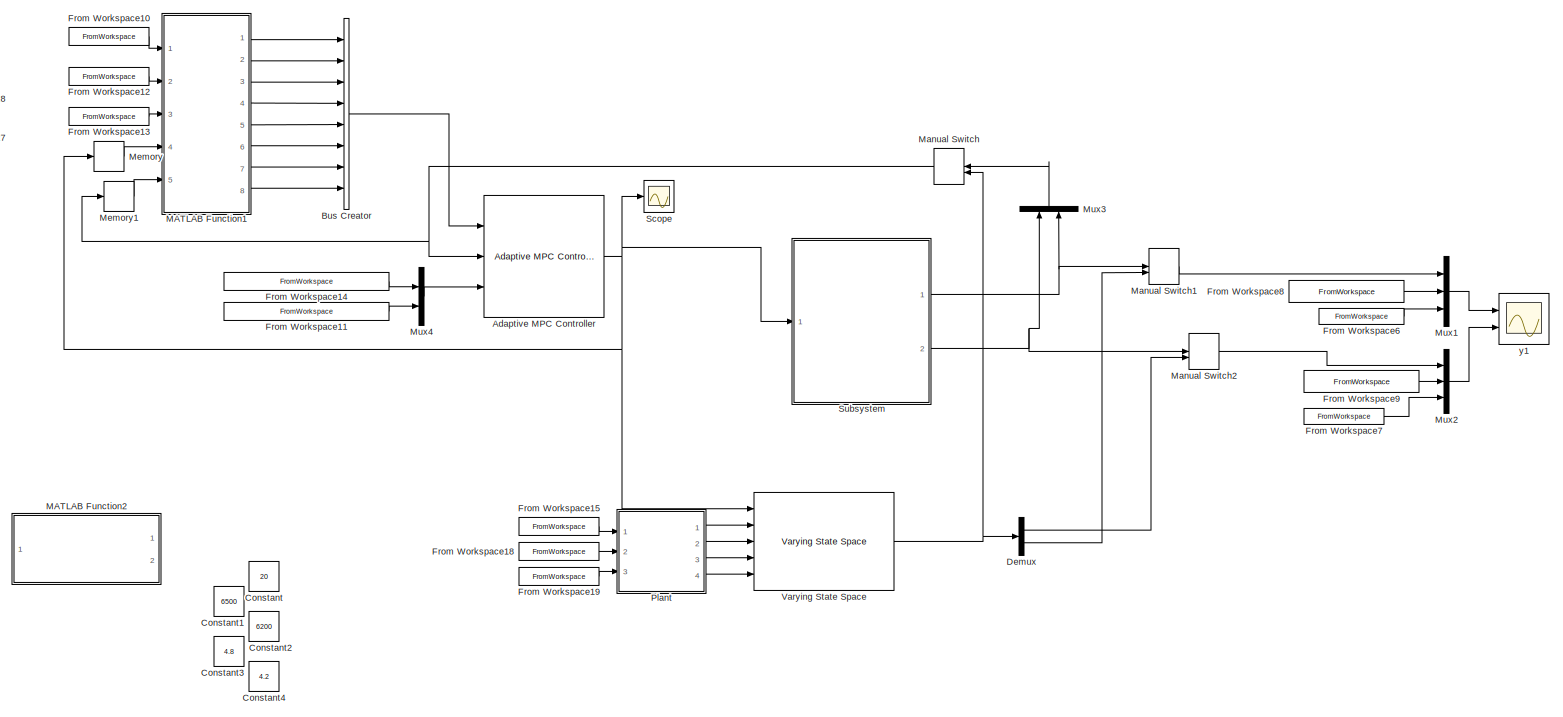
[diagram: root canvas - part 1/3, full width, middle band]
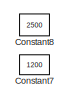
[diagram: root canvas - part 2/3, top left region]
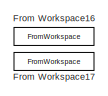
[diagram: root canvas - part 3/3, bottom center region]
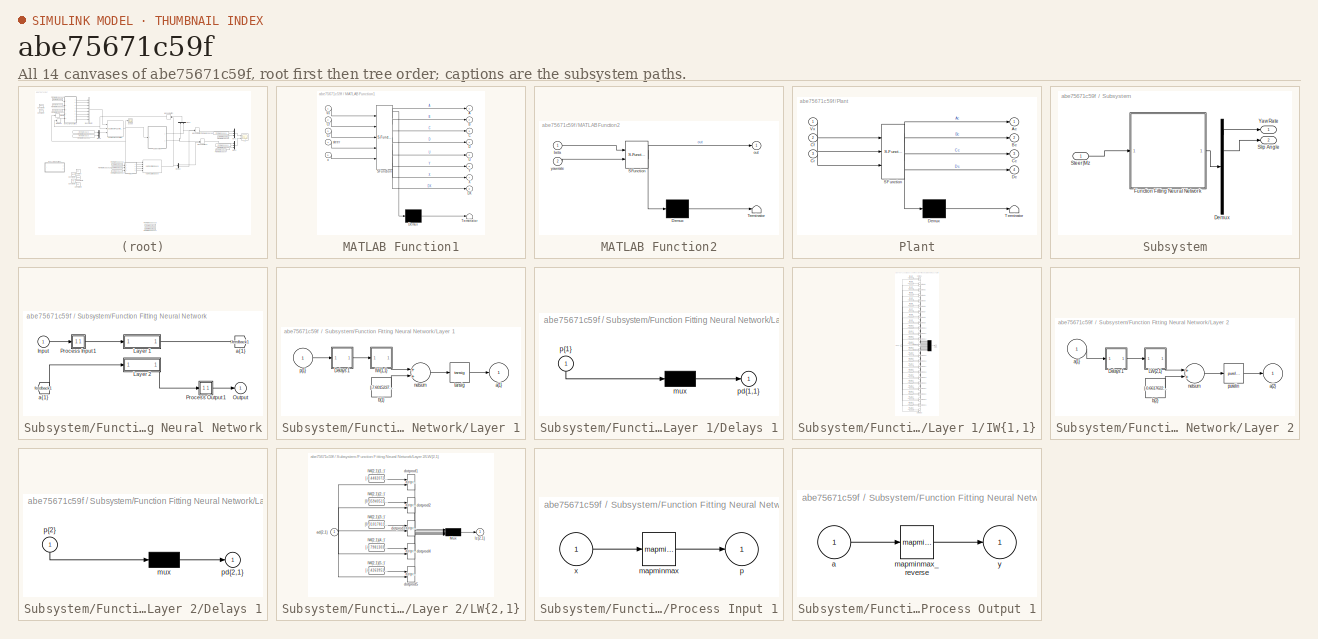
[diagram: thumbnail index - all 14 canvases of the model, root first then tree order]
MODEL slx_abe75671c59f
KIND model
CONFIG AbsTol = auto
CONFIG EnableMultiTasking = off
CONFIG FixedStep = 0.025
CONFIG MaxStep = auto
CONFIG MinStep = auto
CONFIG RelTol = 1e-3
CONFIG SampleTimeConstraint = Unconstrained
CONFIG Solver = FixedStepAuto
CONFIG SolverName = FixedStepAuto
CONFIG StartTime = 0.0
CONFIG StopTime = 10.0
BLOCK [Reference] Adaptive MPC Controller  REF=mpclib/Adaptive MPC Controller  (lib defined in mdl_ae329e0e0455)
  Ports = [3, 1]
  SCDEnableBlockLinearizationSpecification = on
  SourceBlock = mpclib/Adaptive MPC Controller
  SourceProductBaseCode = MP
  SourceProductName = Model Predictive Control Toolbox
  SourceType = Adaptive MPC
BLOCK [BusCreator] Bus Creator
  DisplayOption = bar
  InheritFromInputs = on
  Inputs = 8
  Ports = [8, 1]
BLOCK [Constant] Constant
  Commented = on
  Value = 20
BLOCK [Constant] Constant1
  Commented = on
  Value = 6500
BLOCK [Constant] Constant2
  Commented = on
  Value = 6200
BLOCK [Constant] Constant3
  Commented = on
  Value = 4.8
BLOCK [Constant] Constant4
  Commented = on
  Value = 4.2
BLOCK [Constant] Constant7
  Commented = on
  Value = 1200
BLOCK [Constant] Constant8
  Commented = on
  Value = 2500
BLOCK [Demux] Demux
  DisplayOption = bar
  Outputs = 2
  Ports = [1, 2]
BLOCK [FromWorkspace] From Workspace10
  SampleTime = 0
  VariableName = [Time Vx]
  ZeroCross = on
BLOCK [FromWorkspace] From Workspace11
  SampleTime = 0
  VariableName = [Time YawRateRef_Filtered]
  ZeroCross = on
BLOCK [FromWorkspace] From Workspace12
  SampleTime = 0
  VariableName = [Time Cf_fit]
  ZeroCross = on
BLOCK [FromWorkspace] From Workspace13
  SampleTime = 0
  VariableName = [Time Cr_fit]
  ZeroCross = on
BLOCK [FromWorkspace] From Workspace14
  SampleTime = 0
  VariableName = [Time BetaRef_Filtered]
  ZeroCross = on
BLOCK [FromWorkspace] From Workspace15
  SampleTime = 0
  VariableName = [Time Vx]
  ZeroCross = on
BLOCK [FromWorkspace] From Workspace16
  SampleTime = 0
  VariableName = [Time Cf_fit]
  ZeroCross = on
BLOCK [FromWorkspace] From Workspace17
  SampleTime = 0
  VariableName = [Time Cr_fit]
  ZeroCross = on
BLOCK [FromWorkspace] From Workspace18
  SampleTime = 0
  VariableName = [Time Cf_fit]
  ZeroCross = on
BLOCK [FromWorkspace] From Workspace19
  SampleTime = 0
  VariableName = [Time Cr_fit]
  ZeroCross = on
BLOCK [FromWorkspace] From Workspace6
  SampleTime = 0
  VariableName = [Time YawR]
  ZeroCross = on
BLOCK [FromWorkspace] From Workspace7
  SampleTime = 0
  VariableName = [Time Beta]
  ZeroCross = on
BLOCK [FromWorkspace] From Workspace8
  SampleTime = 0
  VariableName = [Time YawRateRef_Filtered]
  ZeroCross = on
BLOCK [FromWorkspace] From Workspace9
  SampleTime = 0
  VariableName = [Time BetaRef_Filtered]
  ZeroCross = on
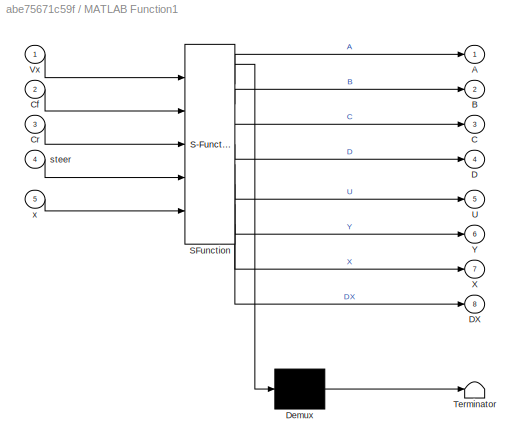
BLOCK [SubSystem] MATLAB Function1
  ErrorFcn = Stateflow.Translate.translate
  PermitHierarchicalResolution = ExplicitOnly
  Ports = [5, 8]
  RequestExecContextInheritance = off
  SFBlockType = MATLAB Function
  TreatAsAtomicUnit = on
BLOCK [Demux] MATLAB Function1/ Demux 
  Outputs = 1
  Ports = [1, 1]
BLOCK [S-Function] MATLAB Function1/ SFunction 
  EnableBusSupport = on
  FunctionName = sf_sfun
  PortCounts = [5 9]
  Ports = [5, 9]
  SFcnIsStateOwnerBlock = off
  SFunctionDeploymentMode = off
  Tag = Stateflow S-Function 2
BLOCK [Terminator] MATLAB Function1/ Terminator 
BLOCK [Outport] MATLAB Function1/A
  IconDisplay = Port number
  VectorParamsAs1DForOutWhenUnconnected = off
BLOCK [Outport] MATLAB Function1/B
  IconDisplay = Port number
  Port = 2
  VectorParamsAs1DForOutWhenUnconnected = off
BLOCK [Outport] MATLAB Function1/C
  IconDisplay = Port number
  Port = 3
  VectorParamsAs1DForOutWhenUnconnected = off
BLOCK [Inport] MATLAB Function1/Cf
  IconDisplay = Port number
  Port = 2
BLOCK [Inport] MATLAB Function1/Cr
  IconDisplay = Port number
  Port = 3
BLOCK [Outport] MATLAB Function1/D
  IconDisplay = Port number
  Port = 4
  VectorParamsAs1DForOutWhenUnconnected = off
BLOCK [Outport] MATLAB Function1/DX
  IconDisplay = Port number
  Port = 8
  VectorParamsAs1DForOutWhenUnconnected = off
BLOCK [Outport] MATLAB Function1/U
  IconDisplay = Port number
  Port = 5
  VectorParamsAs1DForOutWhenUnconnected = off
BLOCK [Inport] MATLAB Function1/Vx
  IconDisplay = Port number
BLOCK [Outport] MATLAB Function1/X
  IconDisplay = Port number
  Port = 7
  VectorParamsAs1DForOutWhenUnconnected = off
BLOCK [Outport] MATLAB Function1/Y
  IconDisplay = Port number
  Port = 6
  VectorParamsAs1DForOutWhenUnconnected = off
BLOCK [Inport] MATLAB Function1/steer
  IconDisplay = Port number
  Port = 4
BLOCK [Inport] MATLAB Function1/x
  IconDisplay = Port number
  Port = 5
BLOCK [SubSystem] MATLAB Function2
  Commented = on
  ErrorFcn = Stateflow.Translate.translate
  PermitHierarchicalResolution = ExplicitOnly
  Ports = [2, 1]
  RequestExecContextInheritance = off
  SFBlockType = MATLAB Function
  TreatAsAtomicUnit = on
BLOCK [Demux] MATLAB Function2/ Demux 
  Outputs = 1
  Ports = [1, 1]
BLOCK [S-Function] MATLAB Function2/ SFunction 
  EnableBusSupport = on
  FunctionName = sf_sfun
  PortCounts = [2 2]
  Ports = [2, 2]
  SFcnIsStateOwnerBlock = off
  SFunctionDeploymentMode = off
  Tag = Stateflow S-Function 3
BLOCK [Terminator] MATLAB Function2/ Terminator 
BLOCK [Inport] MATLAB Function2/beta
  IconDisplay = Port number
BLOCK [Outport] MATLAB Function2/out
  IconDisplay = Port number
  VectorParamsAs1DForOutWhenUnconnected = off
BLOCK [Inport] MATLAB Function2/yawrate
  IconDisplay = Port number
  Port = 2
BLOCK [ManualSwitch] Manual Switch
  CurrentSetting = 0
BLOCK [ManualSwitch] Manual Switch1
  CurrentSetting = 0
BLOCK [ManualSwitch] Manual Switch2
  CurrentSetting = 0
BLOCK [Memory] Memory
BLOCK [Memory] Memory1
BLOCK [Mux] Mux1
  DisplayOption = bar
  Inputs = 3
  Ports = [3, 1]
BLOCK [Mux] Mux2
  DisplayOption = bar
  Inputs = 3
  Ports = [3, 1]
BLOCK [Mux] Mux3
  DisplayOption = bar
  Inputs = 2
  Ports = [2, 1]
BLOCK [Mux] Mux4
  DisplayOption = bar
  Inputs = 2
  Ports = [2, 1]
BLOCK [SubSystem] Plant
  ErrorFcn = Stateflow.Translate.translate
  PermitHierarchicalResolution = ExplicitOnly
  Ports = [3, 4]
  RequestExecContextInheritance = off
  SFBlockType = MATLAB Function
  TreatAsAtomicUnit = on
BLOCK [Demux] Plant/ Demux 
  Outputs = 1
  Ports = [1, 1]
BLOCK [S-Function] Plant/ SFunction 
  EnableBusSupport = on
  FunctionName = sf_sfun
  PortCounts = [3 5]
  Ports = [3, 5]
  SFcnIsStateOwnerBlock = off
  SFunctionDeploymentMode = off
  Tag = Stateflow S-Function 1
BLOCK [Terminator] Plant/ Terminator 
BLOCK [Outport] Plant/Ac
  IconDisplay = Port number
  VectorParamsAs1DForOutWhenUnconnected = off
BLOCK [Outport] Plant/Bc
  IconDisplay = Port number
  Port = 2
BLOCK [Outport] Plant/Cc
  IconDisplay = Port number
  Port = 3
BLOCK [Inport] Plant/Cf
  IconDisplay = Port number
  Port = 2
BLOCK [Inport] Plant/Cr
  IconDisplay = Port number
  Port = 3
BLOCK [Outport] Plant/Dc
  IconDisplay = Port number
  Port = 4
BLOCK [Inport] Plant/Vx
  IconDisplay = Port number
BLOCK [Scope] Scope
  Floating = off
  NumInputPorts = 1
  Ports = [1]
  ScopeSpecificationString = Simulink.scopes.TimeScopeBlockCfg('CurrentConfiguration', extmgr.ConfigurationSet(extmgr.Configuration('Core','General UI',true),extmgr.Configuration('Core','Source UI',true),extmgr.Configuration('Sources','WiredSimulink',true,'DataLoggingVariableName','ScopeData1'),extmgr.Configuration('Visuals','Time Domain',true,'SerializedDisplays',{struct('MinYLimReal','-0.48048','MaxYLimReal','0.6308','YLabe...<+1430ch>
BLOCK [SubSystem] Subsystem
  Ports = [1, 2]
  RequestExecContextInheritance = off
BLOCK [Demux] Subsystem/Demux
  DisplayOption = bar
  Outputs = 5
  Ports = [1, 5]
BLOCK [SubSystem] Subsystem/Function Fitting Neural Network
  Ports = [1, 1]
  RequestExecContextInheritance = off
BLOCK [From] Subsystem/Function Fitting Neural Network/ a{1} 
  GotoTag = feedback1
BLOCK [Inport] Subsystem/Function Fitting Neural Network/Input
  IconDisplay = Port number
  PortDimensions = 2
BLOCK [SubSystem] Subsystem/Function Fitting Neural Network/Layer 1
  Ports = [1, 1]
  RequestExecContextInheritance = off
BLOCK [SubSystem] Subsystem/Function Fitting Neural Network/Layer 1/Delays 1
  Ports = [1, 1]
  RequestExecContextInheritance = off
BLOCK [Mux] Subsystem/Function Fitting Neural Network/Layer 1/Delays 1/mux
  Inputs = 1
  Ports = [1, 1]
BLOCK [Outport] Subsystem/Function Fitting Neural Network/Layer 1/Delays 1/pd{1,1}
  IconDisplay = Port number
BLOCK [Inport] Subsystem/Function Fitting Neural Network/Layer 1/Delays 1/p{1}
  IconDisplay = Port number
  PortDimensions = 2
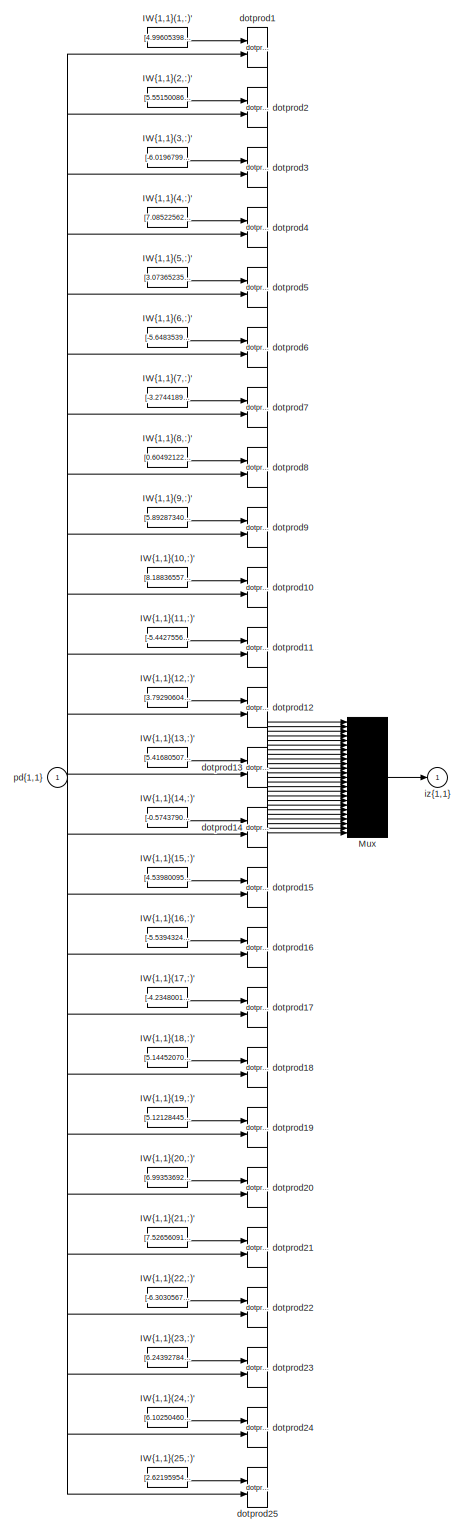
[diagram: Subsystem/Function Fitting Neural Network/Layer 1/IW{1,1} - part 1/1, most of the canvas]
BLOCK [SubSystem] Subsystem/Function Fitting Neural Network/Layer 1/IW{1,1}
  Ports = [1, 1]
  RequestExecContextInheritance = off
BLOCK [Constant] Subsystem/Function Fitting Neural Network/Layer 1/IW{1,1}/IW{1,1}(1,:)'
  Value = [4.996053988368071685499671730212867259979248046875;4.145420661992755384517295169644057750701904296875]
BLOCK [Constant] Subsystem/Function Fitting Neural Network/Layer 1/IW{1,1}/IW{1,1}(10,:)'
  Value = [8.188365570810294258308204007335007190704345703125;-2.409695227788061000495645203045569360256195068359375]
BLOCK [Constant] Subsystem/Function Fitting Neural Network/Layer 1/IW{1,1}/IW{1,1}(11,:)'
  Value = [-5.44275560453445717001841330784372985363006591796875;4.6210999722036749659537235856987535953521728515625]
BLOCK [Constant] Subsystem/Function Fitting Neural Network/Layer 1/IW{1,1}/IW{1,1}(12,:)'
  Value = [3.792906040927508382054611502098850905895233154296875;5.41023104363073148448393112630583345890045166015625]
BLOCK [Constant] Subsystem/Function Fitting Neural Network/Layer 1/IW{1,1}/IW{1,1}(13,:)'
  Value = [5.416805075886014009256541612558066844940185546875;-0.8189647585865877932320699983392842113971710205078125]
BLOCK [Constant] Subsystem/Function Fitting Neural Network/Layer 1/IW{1,1}/IW{1,1}(14,:)'
  Value = [-0.57437906437598351683249120469554327428340911865234375;6.4599590475109085474514358793385326862335205078125]
BLOCK [Constant] Subsystem/Function Fitting Neural Network/Layer 1/IW{1,1}/IW{1,1}(15,:)'
  Value = [4.53980095887533163789839818491600453853607177734375;-4.45479863089978511681010786560364067554473876953125]
BLOCK [Constant] Subsystem/Function Fitting Neural Network/Layer 1/IW{1,1}/IW{1,1}(16,:)'
  Value = [-5.53943245901380709739214580622501671314239501953125;-1.8765098279659522262363680056296288967132568359375]
BLOCK [Constant] Subsystem/Function Fitting Neural Network/Layer 1/IW{1,1}/IW{1,1}(17,:)'
  Value = [-4.23480018400868818417848160606808960437774658203125;-5.3802196894214073807916065561585128307342529296875]
BLOCK [Constant] Subsystem/Function Fitting Neural Network/Layer 1/IW{1,1}/IW{1,1}(18,:)'
  Value = [5.14452070878791456465251030749641358852386474609375;2.89378943224349516327720266417600214481353759765625]
BLOCK [Constant] Subsystem/Function Fitting Neural Network/Layer 1/IW{1,1}/IW{1,1}(19,:)'
  Value = [5.1212844519854261449154364527203142642974853515625;5.17323871498760734510824477183632552623748779296875]
BLOCK [Constant] Subsystem/Function Fitting Neural Network/Layer 1/IW{1,1}/IW{1,1}(2,:)'
  Value = [5.551500868008591993429945432581007480621337890625;3.133051460530499543466476097819395363330841064453125]
BLOCK [Constant] Subsystem/Function Fitting Neural Network/Layer 1/IW{1,1}/IW{1,1}(20,:)'
  Value = [6.993536928580141420752624981105327606201171875;-3.260033407146683881450144326663576066493988037109375]
BLOCK [Constant] Subsystem/Function Fitting Neural Network/Layer 1/IW{1,1}/IW{1,1}(21,:)'
  Value = [7.5265609134668363111586586455814540386199951171875;0.29540877351377670123611096641980111598968505859375]
BLOCK [Constant] Subsystem/Function Fitting Neural Network/Layer 1/IW{1,1}/IW{1,1}(22,:)'
  Value = [-6.30305673694603374457301470101810991764068603515625;-0.8171607153727364902806584723293781280517578125]
BLOCK [Constant] Subsystem/Function Fitting Neural Network/Layer 1/IW{1,1}/IW{1,1}(23,:)'
  Value = [6.24392784242004861283703576191328465938568115234375;1.6699860577824237051203226656070910394191741943359375]
BLOCK [Constant] Subsystem/Function Fitting Neural Network/Layer 1/IW{1,1}/IW{1,1}(24,:)'
  Value = [6.1025046068999824200318471412174403667449951171875;2.47739386931625205079399165697395801544189453125]
BLOCK [Constant] Subsystem/Function Fitting Neural Network/Layer 1/IW{1,1}/IW{1,1}(25,:)'
  Value = [2.621959544782504369919706732616759836673736572265625;5.01583836917054615156530417152680456638336181640625]
BLOCK [Constant] Subsystem/Function Fitting Neural Network/Layer 1/IW{1,1}/IW{1,1}(3,:)'
  Value = [-6.0196799470979129864645074121654033660888671875;-2.471339153734376292703700528363697230815887451171875]
BLOCK [Constant] Subsystem/Function Fitting Neural Network/Layer 1/IW{1,1}/IW{1,1}(4,:)'
  Value = [7.08522562572618941345581333735026419162750244140625;1.9863962476412424518201760292868129909038543701171875]
BLOCK [Constant] Subsystem/Function Fitting Neural Network/Layer 1/IW{1,1}/IW{1,1}(5,:)'
  Value = [3.073652356561554110925271743326447904109954833984375;-5.417080363860208080950542353093624114990234375]
BLOCK [Constant] Subsystem/Function Fitting Neural Network/Layer 1/IW{1,1}/IW{1,1}(6,:)'
  Value = [-5.64835399104979529738557175733149051666259765625;4.04429213445521984482411426142789423465728759765625]
BLOCK [Constant] Subsystem/Function Fitting Neural Network/Layer 1/IW{1,1}/IW{1,1}(7,:)'
  Value = [-3.274418974235211887702234889729879796504974365234375;-6.908756771193765189309488050639629364013671875]
BLOCK [Constant] Subsystem/Function Fitting Neural Network/Layer 1/IW{1,1}/IW{1,1}(8,:)'
  Value = [0.60492122327601549613973475061357021331787109375;-6.23918715065932527608083546510897576808929443359375]
BLOCK [Constant] Subsystem/Function Fitting Neural Network/Layer 1/IW{1,1}/IW{1,1}(9,:)'
  Value = [5.89287340047747942861633418942801654338836669921875;-3.264426106743424593759073104592971503734588623046875]
BLOCK [Mux] Subsystem/Function Fitting Neural Network/Layer 1/IW{1,1}/Mux
  Inputs = 25
  Ports = [25, 1]
BLOCK [Reference] Subsystem/Function Fitting Neural Network/Layer 1/IW{1,1}/dotprod1  REF=neural/Weight Functions/dotprod
  Ports = [2, 1]
  SourceBlock = neural/Weight Functions/dotprod
  SourceProductBaseCode = NN
  SourceProductName = Deep Learning Toolbox
  SourceType = DOTPROD
BLOCK [Reference] Subsystem/Function Fitting Neural Network/Layer 1/IW{1,1}/dotprod10  REF=neural/Weight Functions/dotprod
  Ports = [2, 1]
  SourceBlock = neural/Weight Functions/dotprod
  SourceProductBaseCode = NN
  SourceProductName = Deep Learning Toolbox
  SourceType = DOTPROD
BLOCK [Reference] Subsystem/Function Fitting Neural Network/Layer 1/IW{1,1}/dotprod11  REF=neural/Weight Functions/dotprod
  Ports = [2, 1]
  SourceBlock = neural/Weight Functions/dotprod
  SourceProductBaseCode = NN
  SourceProductName = Deep Learning Toolbox
  SourceType = DOTPROD
BLOCK [Reference] Subsystem/Function Fitting Neural Network/Layer 1/IW{1,1}/dotprod12  REF=neural/Weight Functions/dotprod
  Ports = [2, 1]
  SourceBlock = neural/Weight Functions/dotprod
  SourceProductBaseCode = NN
  SourceProductName = Deep Learning Toolbox
  SourceType = DOTPROD
BLOCK [Reference] Subsystem/Function Fitting Neural Network/Layer 1/IW{1,1}/dotprod13  REF=neural/Weight Functions/dotprod
  Ports = [2, 1]
  SourceBlock = neural/Weight Functions/dotprod
  SourceProductBaseCode = NN
  SourceProductName = Deep Learning Toolbox
  SourceType = DOTPROD
BLOCK [Reference] Subsystem/Function Fitting Neural Network/Layer 1/IW{1,1}/dotprod14  REF=neural/Weight Functions/dotprod
  Ports = [2, 1]
  SourceBlock = neural/Weight Functions/dotprod
  SourceProductBaseCode = NN
  SourceProductName = Deep Learning Toolbox
  SourceType = DOTPROD
BLOCK [Reference] Subsystem/Function Fitting Neural Network/Layer 1/IW{1,1}/dotprod15  REF=neural/Weight Functions/dotprod
  Ports = [2, 1]
  SourceBlock = neural/Weight Functions/dotprod
  SourceProductBaseCode = NN
  SourceProductName = Deep Learning Toolbox
  SourceType = DOTPROD
BLOCK [Reference] Subsystem/Function Fitting Neural Network/Layer 1/IW{1,1}/dotprod16  REF=neural/Weight Functions/dotprod
  Ports = [2, 1]
  SourceBlock = neural/Weight Functions/dotprod
  SourceProductBaseCode = NN
  SourceProductName = Deep Learning Toolbox
  SourceType = DOTPROD
BLOCK [Reference] Subsystem/Function Fitting Neural Network/Layer 1/IW{1,1}/dotprod17  REF=neural/Weight Functions/dotprod
  Ports = [2, 1]
  SourceBlock = neural/Weight Functions/dotprod
  SourceProductBaseCode = NN
  SourceProductName = Deep Learning Toolbox
  SourceType = DOTPROD
BLOCK [Reference] Subsystem/Function Fitting Neural Network/Layer 1/IW{1,1}/dotprod18  REF=neural/Weight Functions/dotprod
  Ports = [2, 1]
  SourceBlock = neural/Weight Functions/dotprod
  SourceProductBaseCode = NN
  SourceProductName = Deep Learning Toolbox
  SourceType = DOTPROD
BLOCK [Reference] Subsystem/Function Fitting Neural Network/Layer 1/IW{1,1}/dotprod19  REF=neural/Weight Functions/dotprod
  Ports = [2, 1]
  SourceBlock = neural/Weight Functions/dotprod
  SourceProductBaseCode = NN
  SourceProductName = Deep Learning Toolbox
  SourceType = DOTPROD
BLOCK [Reference] Subsystem/Function Fitting Neural Network/Layer 1/IW{1,1}/dotprod2  REF=neural/Weight Functions/dotprod
  Ports = [2, 1]
  SourceBlock = neural/Weight Functions/dotprod
  SourceProductBaseCode = NN
  SourceProductName = Deep Learning Toolbox
  SourceType = DOTPROD
BLOCK [Reference] Subsystem/Function Fitting Neural Network/Layer 1/IW{1,1}/dotprod20  REF=neural/Weight Functions/dotprod
  Ports = [2, 1]
  SourceBlock = neural/Weight Functions/dotprod
  SourceProductBaseCode = NN
  SourceProductName = Deep Learning Toolbox
  SourceType = DOTPROD
BLOCK [Reference] Subsystem/Function Fitting Neural Network/Layer 1/IW{1,1}/dotprod21  REF=neural/Weight Functions/dotprod
  Ports = [2, 1]
  SourceBlock = neural/Weight Functions/dotprod
  SourceProductBaseCode = NN
  SourceProductName = Deep Learning Toolbox
  SourceType = DOTPROD
BLOCK [Reference] Subsystem/Function Fitting Neural Network/Layer 1/IW{1,1}/dotprod22  REF=neural/Weight Functions/dotprod
  Ports = [2, 1]
  SourceBlock = neural/Weight Functions/dotprod
  SourceProductBaseCode = NN
  SourceProductName = Deep Learning Toolbox
  SourceType = DOTPROD
BLOCK [Reference] Subsystem/Function Fitting Neural Network/Layer 1/IW{1,1}/dotprod23  REF=neural/Weight Functions/dotprod
  Ports = [2, 1]
  SourceBlock = neural/Weight Functions/dotprod
  SourceProductBaseCode = NN
  SourceProductName = Deep Learning Toolbox
  SourceType = DOTPROD
BLOCK [Reference] Subsystem/Function Fitting Neural Network/Layer 1/IW{1,1}/dotprod24  REF=neural/Weight Functions/dotprod
  Ports = [2, 1]
  SourceBlock = neural/Weight Functions/dotprod
  SourceProductBaseCode = NN
  SourceProductName = Deep Learning Toolbox
  SourceType = DOTPROD
BLOCK [Reference] Subsystem/Function Fitting Neural Network/Layer 1/IW{1,1}/dotprod25  REF=neural/Weight Functions/dotprod
  Ports = [2, 1]
  SourceBlock = neural/Weight Functions/dotprod
  SourceProductBaseCode = NN
  SourceProductName = Deep Learning Toolbox
  SourceType = DOTPROD
BLOCK [Reference] Subsystem/Function Fitting Neural Network/Layer 1/IW{1,1}/dotprod3  REF=neural/Weight Functions/dotprod
  Ports = [2, 1]
  SourceBlock = neural/Weight Functions/dotprod
  SourceProductBaseCode = NN
  SourceProductName = Deep Learning Toolbox
  SourceType = DOTPROD
BLOCK [Reference] Subsystem/Function Fitting Neural Network/Layer 1/IW{1,1}/dotprod4  REF=neural/Weight Functions/dotprod
  Ports = [2, 1]
  SourceBlock = neural/Weight Functions/dotprod
  SourceProductBaseCode = NN
  SourceProductName = Deep Learning Toolbox
  SourceType = DOTPROD
BLOCK [Reference] Subsystem/Function Fitting Neural Network/Layer 1/IW{1,1}/dotprod5  REF=neural/Weight Functions/dotprod
  Ports = [2, 1]
  SourceBlock = neural/Weight Functions/dotprod
  SourceProductBaseCode = NN
  SourceProductName = Deep Learning Toolbox
  SourceType = DOTPROD
BLOCK [Reference] Subsystem/Function Fitting Neural Network/Layer 1/IW{1,1}/dotprod6  REF=neural/Weight Functions/dotprod
  Ports = [2, 1]
  SourceBlock = neural/Weight Functions/dotprod
  SourceProductBaseCode = NN
  SourceProductName = Deep Learning Toolbox
  SourceType = DOTPROD
BLOCK [Reference] Subsystem/Function Fitting Neural Network/Layer 1/IW{1,1}/dotprod7  REF=neural/Weight Functions/dotprod
  Ports = [2, 1]
  SourceBlock = neural/Weight Functions/dotprod
  SourceProductBaseCode = NN
  SourceProductName = Deep Learning Toolbox
  SourceType = DOTPROD
BLOCK [Reference] Subsystem/Function Fitting Neural Network/Layer 1/IW{1,1}/dotprod8  REF=neural/Weight Functions/dotprod
  Ports = [2, 1]
  SourceBlock = neural/Weight Functions/dotprod
  SourceProductBaseCode = NN
  SourceProductName = Deep Learning Toolbox
  SourceType = DOTPROD
BLOCK [Reference] Subsystem/Function Fitting Neural Network/Layer 1/IW{1,1}/dotprod9  REF=neural/Weight Functions/dotprod
  Ports = [2, 1]
  SourceBlock = neural/Weight Functions/dotprod
  SourceProductBaseCode = NN
  SourceProductName = Deep Learning Toolbox
  SourceType = DOTPROD
BLOCK [Outport] Subsystem/Function Fitting Neural Network/Layer 1/IW{1,1}/iz{1,1}
  IconDisplay = Port number
BLOCK [Inport] Subsystem/Function Fitting Neural Network/Layer 1/IW{1,1}/pd{1,1}
  IconDisplay = Port number
  PortDimensions = 2
BLOCK [Outport] Subsystem/Function Fitting Neural Network/Layer 1/a{1}
  IconDisplay = Port number
  InitialOutput = [0;0;0;0;0;0;0;0;0;0;0;0;0;0;0;0;0;0;0;0;0;0;0;0;0]
BLOCK [Constant] Subsystem/Function Fitting Neural Network/Layer 1/b{1}
  Value = [-7.6015237592253388498875210643745958805084228515625;-7.067621756907637831091051339171826839447021484375;6.131774083158564536688572843559086322784423828125;-4.41785899183922037281035954947583377361297607421875;-5.18050561901172290646400142577476799488067626953125;4.16237928554652825141602079384028911590576171875;3.958492862286602242960498188040219247341156005859375;-3.3094068459996921482968446071...<+946ch>
BLOCK [Sum] Subsystem/Function Fitting Neural Network/Layer 1/netsum
  Inputs = 2
  Ports = [2, 1]
BLOCK [Inport] Subsystem/Function Fitting Neural Network/Layer 1/p{1}
  IconDisplay = Port number
  PortDimensions = 2
BLOCK [Reference] Subsystem/Function Fitting Neural Network/Layer 1/tansig  REF=neural/Transfer Functions/tansig
  Ports = [1, 1]
  SourceBlock = neural/Transfer Functions/tansig
  SourceProductBaseCode = NN
  SourceProductName = Deep Learning Toolbox
  SourceType = TANSIG
BLOCK [SubSystem] Subsystem/Function Fitting Neural Network/Layer 2
  Ports = [1, 1]
  RequestExecContextInheritance = off
BLOCK [SubSystem] Subsystem/Function Fitting Neural Network/Layer 2/Delays 1
  Ports = [1, 1]
  RequestExecContextInheritance = off
BLOCK [Mux] Subsystem/Function Fitting Neural Network/Layer 2/Delays 1/mux
  Inputs = 1
  Ports = [1, 1]
BLOCK [Outport] Subsystem/Function Fitting Neural Network/Layer 2/Delays 1/pd{2,1}
  IconDisplay = Port number
BLOCK [Inport] Subsystem/Function Fitting Neural Network/Layer 2/Delays 1/p{2}
  IconDisplay = Port number
  PortDimensions = 25
BLOCK [SubSystem] Subsystem/Function Fitting Neural Network/Layer 2/LW{2,1}
  Ports = [1, 1]
  RequestExecContextInheritance = off
BLOCK [Constant] Subsystem/Function Fitting Neural Network/Layer 2/LW{2,1}/IW{2,1}(1,:)'
  Value = [-0.4482072015830997901986165743437595665454864501953125;-0.003528446238118335999411900871791658573783934116363525390625;0.50278547539266416066539022722281515598297119140625;0.91834133892285707556624174685566686093807220458984375;0.68125239921265834386332471694913692772388458251953125;-0.299859329362623439063639807500294409692287445068359375;-0.29643599585607710578116780197888147085905075073242187...<+1010ch>
BLOCK [Constant] Subsystem/Function Fitting Neural Network/Layer 2/LW{2,1}/IW{2,1}(2,:)'
  Value = [0.359405151552364132694350473684608004987239837646484375;0.9194877185809442465824758983217179775238037109375;-0.48980958324230761125051003546104766428470611572265625;0.09443089900433694616754820572168682701885700225830078125;-0.491435778461312200438015906911459751427173614501953125;-0.60680941137994948153533414370031096041202545166015625;0.661657412334119232610873950761742889881134033203125;0.514...<+1012ch>
BLOCK [Constant] Subsystem/Function Fitting Neural Network/Layer 2/LW{2,1}/IW{2,1}(3,:)'
  Value = [0.310178115867473069844351130086579360067844390869140625;-0.319246058351870198865896099960082210600376129150390625;0.0119323398285082864223038967566026258282363414764404296875;-0.72276861065263242611678151661180891096591949462890625;0.62854044674897091571352802930050529539585113525390625;-0.497798146323329138152047335097449831664562225341796875;0.17054496978963792908068342057958943769335746765136...<+1029ch>
BLOCK [Constant] Subsystem/Function Fitting Neural Network/Layer 2/LW{2,1}/IW{2,1}(4,:)'
  Value = [-0.7981303168728139940668597773765213787555694580078125;0.2485837086215596791749504745894228108227252960205078125;0.055851556164851122454617637913543148897588253021240234375;-0.026283490399110286117601020805523148737847805023193359375;-0.00588301349287416452948917822141083888709545135498046875;0.1318166008634154007239658312755636870861053466796875;0.09055598797878289252238914741610642522573471069...<+1048ch>
BLOCK [Constant] Subsystem/Function Fitting Neural Network/Layer 2/LW{2,1}/IW{2,1}(5,:)'
  Value = [-0.42639514289580782158139982129796408116817474365234375;0.2459582307106894794035412132870987989008426666259765625;0.32824797888202839057925075394450686872005462646484375;-0.393309954501700642648387429289869032800197601318359375;0.7741606150701032529326539588510058820247650146484375;-0.175883823063483879511892382652149535715579986572265625;0.1238928741617336404257088133817887865006923675537109375...<+1009ch>
BLOCK [Mux] Subsystem/Function Fitting Neural Network/Layer 2/LW{2,1}/Mux
  Inputs = 5
  Ports = [5, 1]
BLOCK [Inport] Subsystem/Function Fitting Neural Network/Layer 2/LW{2,1}/ad{2,1}
  IconDisplay = Port number
  PortDimensions = 25
BLOCK [Reference] Subsystem/Function Fitting Neural Network/Layer 2/LW{2,1}/dotprod1  REF=neural/Weight Functions/dotprod
  Ports = [2, 1]
  SourceBlock = neural/Weight Functions/dotprod
  SourceProductBaseCode = NN
  SourceProductName = Deep Learning Toolbox
  SourceType = DOTPROD
BLOCK [Reference] Subsystem/Function Fitting Neural Network/Layer 2/LW{2,1}/dotprod2  REF=neural/Weight Functions/dotprod
  Ports = [2, 1]
  SourceBlock = neural/Weight Functions/dotprod
  SourceProductBaseCode = NN
  SourceProductName = Deep Learning Toolbox
  SourceType = DOTPROD
BLOCK [Reference] Subsystem/Function Fitting Neural Network/Layer 2/LW{2,1}/dotprod3  REF=neural/Weight Functions/dotprod
  Ports = [2, 1]
  SourceBlock = neural/Weight Functions/dotprod
  SourceProductBaseCode = NN
  SourceProductName = Deep Learning Toolbox
  SourceType = DOTPROD
BLOCK [Reference] Subsystem/Function Fitting Neural Network/Layer 2/LW{2,1}/dotprod4  REF=neural/Weight Functions/dotprod
  Ports = [2, 1]
  SourceBlock = neural/Weight Functions/dotprod
  SourceProductBaseCode = NN
  SourceProductName = Deep Learning Toolbox
  SourceType = DOTPROD
BLOCK [Reference] Subsystem/Function Fitting Neural Network/Layer 2/LW{2,1}/dotprod5  REF=neural/Weight Functions/dotprod
  Ports = [2, 1]
  SourceBlock = neural/Weight Functions/dotprod
  SourceProductBaseCode = NN
  SourceProductName = Deep Learning Toolbox
  SourceType = DOTPROD
BLOCK [Outport] Subsystem/Function Fitting Neural Network/Layer 2/LW{2,1}/lz{2,1}
  IconDisplay = Port number
BLOCK [Inport] Subsystem/Function Fitting Neural Network/Layer 2/a{1} 
  IconDisplay = Port number
  PortDimensions = 25
BLOCK [Outport] Subsystem/Function Fitting Neural Network/Layer 2/a{2}
  IconDisplay = Port number
  InitialOutput = [0;0;0;0;0]
BLOCK [Constant] Subsystem/Function Fitting Neural Network/Layer 2/b{2}
  Value = [-0.66176225356264140042839017041842453181743621826171875;0.298231153661451753311695256343227811157703399658203125;0.463462841939217995435029706641216762363910675048828125;0.44422125612375673586740276732598431408405303955078125;-0.036255787546502001028603245913473074324429035186767578125]
BLOCK [Sum] Subsystem/Function Fitting Neural Network/Layer 2/netsum
  Inputs = 2
  Ports = [2, 1]
BLOCK [Reference] Subsystem/Function Fitting Neural Network/Layer 2/purelin  REF=neural/Transfer Functions/purelin
  Ports = [1, 1]
  SourceBlock = neural/Transfer Functions/purelin
  SourceProductBaseCode = NN
  SourceProductName = Deep Learning Toolbox
  SourceType = PURELIN
BLOCK [Outport] Subsystem/Function Fitting Neural Network/Output
  IconDisplay = Port number
  InitialOutput = [0;0;0;0;0]
BLOCK [SubSystem] Subsystem/Function Fitting Neural Network/Process Input 1
  Ports = [1, 1]
  RequestExecContextInheritance = off
BLOCK [Reference] Subsystem/Function Fitting Neural Network/Process Input 1/mapminmax  REF=neural/Processing Functions/mapminmax
  Ports = [1, 1]
  SourceBlock = neural/Processing Functions/mapminmax
  SourceProductBaseCode = NN
  SourceProductName = Deep Learning Toolbox
  SourceType = MAPMINMAX Preprocess
BLOCK [Outport] Subsystem/Function Fitting Neural Network/Process Input 1/p
  IconDisplay = Port number
  PortDimensions = 2
BLOCK [Inport] Subsystem/Function Fitting Neural Network/Process Input 1/x
  IconDisplay = Port number
  PortDimensions = 2
BLOCK [SubSystem] Subsystem/Function Fitting Neural Network/Process Output 1
  Ports = [1, 1]
  RequestExecContextInheritance = off
BLOCK [Inport] Subsystem/Function Fitting Neural Network/Process Output 1/a
  IconDisplay = Port number
  PortDimensions = 5
BLOCK [Reference] Subsystem/Function Fitting Neural Network/Process Output 1/mapminmax_reverse  REF=neural/Processing Functions/mapminmax_reverse
  Ports = [1, 1]
  SourceBlock = neural/Processing Functions/mapminmax_reverse
  SourceProductBaseCode = NN
  SourceProductName = Deep Learning Toolbox
  SourceType = MAPMINMAX Reverse Process
BLOCK [Outport] Subsystem/Function Fitting Neural Network/Process Output 1/y
  IconDisplay = Port number
  PortDimensions = 5
BLOCK [Goto] Subsystem/Function Fitting Neural Network/a{1}
  GotoTag = feedback1
BLOCK [Outport] Subsystem/Slip Angle
  IconDisplay = Port number
  Port = 2
  VectorParamsAs1DForOutWhenUnconnected = off
BLOCK [Inport] Subsystem/Steer|Mz
  IconDisplay = Port number
BLOCK [Outport] Subsystem/Yaw Rate
  IconDisplay = Port number
  VectorParamsAs1DForOutWhenUnconnected = off
BLOCK [Reference] Varying State Space  REF=cstblocks/Linear Parameter Varying/Varying State Space
  Ports = [5, 1]
  SourceBlock = cstblocks/Linear Parameter Varying/Varying State Space
  SourceProductBaseCode = CT
  SourceProductName = Control System Toolbox
  SourceType = Varying State Space
BLOCK [Scope] y1
  Floating = off
  NumInputPorts = 2
  Ports = [2]
  ScopeSpecificationString = Simulink.scopes.TimeScopeBlockCfg('CurrentConfiguration', extmgr.ConfigurationSet(extmgr.Configuration('Core','General UI',true,'FigureColor',[0.941176470588235 0.941176470588235 0.941176470588235]),extmgr.Configuration('Core','Source UI',true),extmgr.Configuration('Sources','WiredSimulink',true),extmgr.Configuration('Visuals','Time Domain',true,'SerializedDisplays',{struct('MinYLimReal','-0.68115...<+2686ch>
NET Adaptive MPC Controller:1 -> Memory:1, Scope:1, Subsystem:1, Varying State Space:1
LINE Bus Creator:1 -> Adaptive MPC Controller:1
LINE Demux:1 -> Manual Switch2:2
LINE Demux:2 -> Manual Switch1:2
LINE From Workspace10:1 -> MATLAB Function1:1
LINE From Workspace11:1 -> Mux4:2
LINE From Workspace12:1 -> MATLAB Function1:2
LINE From Workspace13:1 -> MATLAB Function1:3
LINE From Workspace14:1 -> Mux4:1
LINE From Workspace15:1 -> Plant:1
LINE From Workspace18:1 -> Plant:2
LINE From Workspace19:1 -> Plant:3
LINE From Workspace6:1 -> Mux1:3
LINE From Workspace7:1 -> Mux2:3
LINE From Workspace8:1 -> Mux1:2
LINE From Workspace9:1 -> Mux2:2
LINE MATLAB Function1:1 -> Bus Creator:1
LINE MATLAB Function1:2 -> Bus Creator:2
LINE MATLAB Function1:3 -> Bus Creator:3
LINE MATLAB Function1:4 -> Bus Creator:4
LINE MATLAB Function1:5 -> Bus Creator:5
LINE MATLAB Function1:6 -> Bus Creator:6
LINE MATLAB Function1:7 -> Bus Creator:7
LINE MATLAB Function1:8 -> Bus Creator:8
LINE Manual Switch1:1 -> Mux1:1
LINE Manual Switch2:1 -> Mux2:1
NET Manual Switch:1 -> Adaptive MPC Controller:2, Memory1:1
LINE Memory1:1 -> MATLAB Function1:5
LINE Memory:1 -> MATLAB Function1:4
LINE Mux1:1 -> y1:1
LINE Mux2:1 -> y1:2
LINE Mux3:1 -> Manual Switch:1
LINE Mux4:1 -> Adaptive MPC Controller:3
LINE Plant:1 -> Varying State Space:2
LINE Plant:2 -> Varying State Space:3
LINE Plant:3 -> Varying State Space:4
LINE Plant:4 -> Varying State Space:5
LINE Subsystem/Demux:1 -> Subsystem/Yaw Rate:1
LINE Subsystem/Demux:2 -> Subsystem/Slip Angle:1
LINE Subsystem/Function Fitting Neural Network/ a{1} :1 -> Subsystem/Function Fitting Neural Network/Layer 2:1
LINE Subsystem/Function Fitting Neural Network/Input:1 -> Subsystem/Function Fitting Neural Network/Process Input 1:1
LINE Subsystem/Function Fitting Neural Network/Layer 1/Delays 1/mux:1 -> Subsystem/Function Fitting Neural Network/Layer 1/Delays 1/pd{1,1}:1
LINE Subsystem/Function Fitting Neural Network/Layer 1/Delays 1/p{1}:1 -> Subsystem/Function Fitting Neural Network/Layer 1/Delays 1/mux:1
LINE Subsystem/Function Fitting Neural Network/Layer 1/Delays 1:1 -> Subsystem/Function Fitting Neural Network/Layer 1/IW{1,1}:1
LINE Subsystem/Function Fitting Neural Network/Layer 1/IW{1,1}/IW{1,1}(1,:)':1 -> Subsystem/Function Fitting Neural Network/Layer 1/IW{1,1}/dotprod1:1
LINE Subsystem/Function Fitting Neural Network/Layer 1/IW{1,1}/IW{1,1}(10,:)':1 -> Subsystem/Function Fitting Neural Network/Layer 1/IW{1,1}/dotprod10:1
LINE Subsystem/Function Fitting Neural Network/Layer 1/IW{1,1}/IW{1,1}(11,:)':1 -> Subsystem/Function Fitting Neural Network/Layer 1/IW{1,1}/dotprod11:1
LINE Subsystem/Function Fitting Neural Network/Layer 1/IW{1,1}/IW{1,1}(12,:)':1 -> Subsystem/Function Fitting Neural Network/Layer 1/IW{1,1}/dotprod12:1
LINE Subsystem/Function Fitting Neural Network/Layer 1/IW{1,1}/IW{1,1}(13,:)':1 -> Subsystem/Function Fitting Neural Network/Layer 1/IW{1,1}/dotprod13:1
LINE Subsystem/Function Fitting Neural Network/Layer 1/IW{1,1}/IW{1,1}(14,:)':1 -> Subsystem/Function Fitting Neural Network/Layer 1/IW{1,1}/dotprod14:1
LINE Subsystem/Function Fitting Neural Network/Layer 1/IW{1,1}/IW{1,1}(15,:)':1 -> Subsystem/Function Fitting Neural Network/Layer 1/IW{1,1}/dotprod15:1
LINE Subsystem/Function Fitting Neural Network/Layer 1/IW{1,1}/IW{1,1}(16,:)':1 -> Subsystem/Function Fitting Neural Network/Layer 1/IW{1,1}/dotprod16:1
LINE Subsystem/Function Fitting Neural Network/Layer 1/IW{1,1}/IW{1,1}(17,:)':1 -> Subsystem/Function Fitting Neural Network/Layer 1/IW{1,1}/dotprod17:1
LINE Subsystem/Function Fitting Neural Network/Layer 1/IW{1,1}/IW{1,1}(18,:)':1 -> Subsystem/Function Fitting Neural Network/Layer 1/IW{1,1}/dotprod18:1
LINE Subsystem/Function Fitting Neural Network/Layer 1/IW{1,1}/IW{1,1}(19,:)':1 -> Subsystem/Function Fitting Neural Network/Layer 1/IW{1,1}/dotprod19:1
LINE Subsystem/Function Fitting Neural Network/Layer 1/IW{1,1}/IW{1,1}(2,:)':1 -> Subsystem/Function Fitting Neural Network/Layer 1/IW{1,1}/dotprod2:1
LINE Subsystem/Function Fitting Neural Network/Layer 1/IW{1,1}/IW{1,1}(20,:)':1 -> Subsystem/Function Fitting Neural Network/Layer 1/IW{1,1}/dotprod20:1
LINE Subsystem/Function Fitting Neural Network/Layer 1/IW{1,1}/IW{1,1}(21,:)':1 -> Subsystem/Function Fitting Neural Network/Layer 1/IW{1,1}/dotprod21:1
LINE Subsystem/Function Fitting Neural Network/Layer 1/IW{1,1}/IW{1,1}(22,:)':1 -> Subsystem/Function Fitting Neural Network/Layer 1/IW{1,1}/dotprod22:1
LINE Subsystem/Function Fitting Neural Network/Layer 1/IW{1,1}/IW{1,1}(23,:)':1 -> Subsystem/Function Fitting Neural Network/Layer 1/IW{1,1}/dotprod23:1
LINE Subsystem/Function Fitting Neural Network/Layer 1/IW{1,1}/IW{1,1}(24,:)':1 -> Subsystem/Function Fitting Neural Network/Layer 1/IW{1,1}/dotprod24:1
LINE Subsystem/Function Fitting Neural Network/Layer 1/IW{1,1}/IW{1,1}(25,:)':1 -> Subsystem/Function Fitting Neural Network/Layer 1/IW{1,1}/dotprod25:1
LINE Subsystem/Function Fitting Neural Network/Layer 1/IW{1,1}/IW{1,1}(3,:)':1 -> Subsystem/Function Fitting Neural Network/Layer 1/IW{1,1}/dotprod3:1
LINE Subsystem/Function Fitting Neural Network/Layer 1/IW{1,1}/IW{1,1}(4,:)':1 -> Subsystem/Function Fitting Neural Network/Layer 1/IW{1,1}/dotprod4:1
LINE Subsystem/Function Fitting Neural Network/Layer 1/IW{1,1}/IW{1,1}(5,:)':1 -> Subsystem/Function Fitting Neural Network/Layer 1/IW{1,1}/dotprod5:1
LINE Subsystem/Function Fitting Neural Network/Layer 1/IW{1,1}/IW{1,1}(6,:)':1 -> Subsystem/Function Fitting Neural Network/Layer 1/IW{1,1}/dotprod6:1
LINE Subsystem/Function Fitting Neural Network/Layer 1/IW{1,1}/IW{1,1}(7,:)':1 -> Subsystem/Function Fitting Neural Network/Layer 1/IW{1,1}/dotprod7:1
LINE Subsystem/Function Fitting Neural Network/Layer 1/IW{1,1}/IW{1,1}(8,:)':1 -> Subsystem/Function Fitting Neural Network/Layer 1/IW{1,1}/dotprod8:1
LINE Subsystem/Function Fitting Neural Network/Layer 1/IW{1,1}/IW{1,1}(9,:)':1 -> Subsystem/Function Fitting Neural Network/Layer 1/IW{1,1}/dotprod9:1
LINE Subsystem/Function Fitting Neural Network/Layer 1/IW{1,1}/Mux:1 -> Subsystem/Function Fitting Neural Network/Layer 1/IW{1,1}/iz{1,1}:1
LINE Subsystem/Function Fitting Neural Network/Layer 1/IW{1,1}/dotprod10:1 -> Subsystem/Function Fitting Neural Network/Layer 1/IW{1,1}/Mux:10
LINE Subsystem/Function Fitting Neural Network/Layer 1/IW{1,1}/dotprod11:1 -> Subsystem/Function Fitting Neural Network/Layer 1/IW{1,1}/Mux:11
LINE Subsystem/Function Fitting Neural Network/Layer 1/IW{1,1}/dotprod12:1 -> Subsystem/Function Fitting Neural Network/Layer 1/IW{1,1}/Mux:12
LINE Subsystem/Function Fitting Neural Network/Layer 1/IW{1,1}/dotprod13:1 -> Subsystem/Function Fitting Neural Network/Layer 1/IW{1,1}/Mux:13
LINE Subsystem/Function Fitting Neural Network/Layer 1/IW{1,1}/dotprod14:1 -> Subsystem/Function Fitting Neural Network/Layer 1/IW{1,1}/Mux:14
LINE Subsystem/Function Fitting Neural Network/Layer 1/IW{1,1}/dotprod15:1 -> Subsystem/Function Fitting Neural Network/Layer 1/IW{1,1}/Mux:15
LINE Subsystem/Function Fitting Neural Network/Layer 1/IW{1,1}/dotprod16:1 -> Subsystem/Function Fitting Neural Network/Layer 1/IW{1,1}/Mux:16
LINE Subsystem/Function Fitting Neural Network/Layer 1/IW{1,1}/dotprod17:1 -> Subsystem/Function Fitting Neural Network/Layer 1/IW{1,1}/Mux:17
LINE Subsystem/Function Fitting Neural Network/Layer 1/IW{1,1}/dotprod18:1 -> Subsystem/Function Fitting Neural Network/Layer 1/IW{1,1}/Mux:18
LINE Subsystem/Function Fitting Neural Network/Layer 1/IW{1,1}/dotprod19:1 -> Subsystem/Function Fitting Neural Network/Layer 1/IW{1,1}/Mux:19
LINE Subsystem/Function Fitting Neural Network/Layer 1/IW{1,1}/dotprod1:1 -> Subsystem/Function Fitting Neural Network/Layer 1/IW{1,1}/Mux:1
LINE Subsystem/Function Fitting Neural Network/Layer 1/IW{1,1}/dotprod20:1 -> Subsystem/Function Fitting Neural Network/Layer 1/IW{1,1}/Mux:20
LINE Subsystem/Function Fitting Neural Network/Layer 1/IW{1,1}/dotprod21:1 -> Subsystem/Function Fitting Neural Network/Layer 1/IW{1,1}/Mux:21
LINE Subsystem/Function Fitting Neural Network/Layer 1/IW{1,1}/dotprod22:1 -> Subsystem/Function Fitting Neural Network/Layer 1/IW{1,1}/Mux:22
LINE Subsystem/Function Fitting Neural Network/Layer 1/IW{1,1}/dotprod23:1 -> Subsystem/Function Fitting Neural Network/Layer 1/IW{1,1}/Mux:23
LINE Subsystem/Function Fitting Neural Network/Layer 1/IW{1,1}/dotprod24:1 -> Subsystem/Function Fitting Neural Network/Layer 1/IW{1,1}/Mux:24
LINE Subsystem/Function Fitting Neural Network/Layer 1/IW{1,1}/dotprod25:1 -> Subsystem/Function Fitting Neural Network/Layer 1/IW{1,1}/Mux:25
LINE Subsystem/Function Fitting Neural Network/Layer 1/IW{1,1}/dotprod2:1 -> Subsystem/Function Fitting Neural Network/Layer 1/IW{1,1}/Mux:2
LINE Subsystem/Function Fitting Neural Network/Layer 1/IW{1,1}/dotprod3:1 -> Subsystem/Function Fitting Neural Network/Layer 1/IW{1,1}/Mux:3
LINE Subsystem/Function Fitting Neural Network/Layer 1/IW{1,1}/dotprod4:1 -> Subsystem/Function Fitting Neural Network/Layer 1/IW{1,1}/Mux:4
LINE Subsystem/Function Fitting Neural Network/Layer 1/IW{1,1}/dotprod5:1 -> Subsystem/Function Fitting Neural Network/Layer 1/IW{1,1}/Mux:5
LINE Subsystem/Function Fitting Neural Network/Layer 1/IW{1,1}/dotprod6:1 -> Subsystem/Function Fitting Neural Network/Layer 1/IW{1,1}/Mux:6
LINE Subsystem/Function Fitting Neural Network/Layer 1/IW{1,1}/dotprod7:1 -> Subsystem/Function Fitting Neural Network/Layer 1/IW{1,1}/Mux:7
LINE Subsystem/Function Fitting Neural Network/Layer 1/IW{1,1}/dotprod8:1 -> Subsystem/Function Fitting Neural Network/Layer 1/IW{1,1}/Mux:8
LINE Subsystem/Function Fitting Neural Network/Layer 1/IW{1,1}/dotprod9:1 -> Subsystem/Function Fitting Neural Network/Layer 1/IW{1,1}/Mux:9
NET Subsystem/Function Fitting Neural Network/Layer 1/IW{1,1}/pd{1,1}:1 -> Subsystem/Function Fitting Neural Network/Layer 1/IW{1,1}/dotprod10:2, Subsystem/Function Fitting Neural Network/Layer 1/IW{1,1}/dotprod11:2, Subsystem/Function Fitting Neural Network/Layer 1/IW{1,1}/dotprod12:2, Subsystem/Function Fitting Neural Network/Layer 1/IW{1,1}/dotprod13:2, Subsystem/Function Fitting Neural Network/Layer 1/IW{1,1}/dotprod14:2, Subsystem/Function Fitting Neural Network/Layer 1/IW{1,1}/dotprod15:2, Subsystem/Function Fitting Neural Network/Layer 1/IW{1,1}/dotprod16:2, Subsystem/Function Fitting Neural Network/Layer 1/IW{1,1}/dotprod17:2, Subsystem/Function Fitting Neural Network/Layer 1/IW{1,1}/dotprod18:2, Subsystem/Function Fitting Neural Network/Layer 1/IW{1,1}/dotprod19:2, Subsystem/Function Fitting Neural Network/Layer 1/IW{1,1}/dotprod1:2, Subsystem/Function Fitting Neural Network/Layer 1/IW{1,1}/dotprod20:2, Subsystem/Function Fitting Neural Network/Layer 1/IW{1,1}/dotprod21:2, Subsystem/Function Fitting Neural Network/Layer 1/IW{1,1}/dotprod22:2, Subsystem/Function Fitting Neural Network/Layer 1/IW{1,1}/dotprod23:2, Subsystem/Function Fitting Neural Network/Layer 1/IW{1,1}/dotprod24:2, Subsystem/Function Fitting Neural Network/Layer 1/IW{1,1}/dotprod25:2, Subsystem/Function Fitting Neural Network/Layer 1/IW{1,1}/dotprod2:2, Subsystem/Function Fitting Neural Network/Layer 1/IW{1,1}/dotprod3:2, Subsystem/Function Fitting Neural Network/Layer 1/IW{1,1}/dotprod4:2, Subsystem/Function Fitting Neural Network/Layer 1/IW{1,1}/dotprod5:2, Subsystem/Function Fitting Neural Network/Layer 1/IW{1,1}/dotprod6:2, Subsystem/Function Fitting Neural Network/Layer 1/IW{1,1}/dotprod7:2, Subsystem/Function Fitting Neural Network/Layer 1/IW{1,1}/dotprod8:2, Subsystem/Function Fitting Neural Network/Layer 1/IW{1,1}/dotprod9:2
LINE Subsystem/Function Fitting Neural Network/Layer 1/IW{1,1}:1 -> Subsystem/Function Fitting Neural Network/Layer 1/netsum:1
LINE Subsystem/Function Fitting Neural Network/Layer 1/b{1}:1 -> Subsystem/Function Fitting Neural Network/Layer 1/netsum:2
LINE Subsystem/Function Fitting Neural Network/Layer 1/netsum:1 -> Subsystem/Function Fitting Neural Network/Layer 1/tansig:1
LINE Subsystem/Function Fitting Neural Network/Layer 1/p{1}:1 -> Subsystem/Function Fitting Neural Network/Layer 1/Delays 1:1
LINE Subsystem/Function Fitting Neural Network/Layer 1/tansig:1 -> Subsystem/Function Fitting Neural Network/Layer 1/a{1}:1
LINE Subsystem/Function Fitting Neural Network/Layer 1:1 -> Subsystem/Function Fitting Neural Network/a{1}:1
LINE Subsystem/Function Fitting Neural Network/Layer 2/Delays 1/mux:1 -> Subsystem/Function Fitting Neural Network/Layer 2/Delays 1/pd{2,1}:1
LINE Subsystem/Function Fitting Neural Network/Layer 2/Delays 1/p{2}:1 -> Subsystem/Function Fitting Neural Network/Layer 2/Delays 1/mux:1
LINE Subsystem/Function Fitting Neural Network/Layer 2/Delays 1:1 -> Subsystem/Function Fitting Neural Network/Layer 2/LW{2,1}:1
LINE Subsystem/Function Fitting Neural Network/Layer 2/LW{2,1}/IW{2,1}(1,:)':1 -> Subsystem/Function Fitting Neural Network/Layer 2/LW{2,1}/dotprod1:1
LINE Subsystem/Function Fitting Neural Network/Layer 2/LW{2,1}/IW{2,1}(2,:)':1 -> Subsystem/Function Fitting Neural Network/Layer 2/LW{2,1}/dotprod2:1
LINE Subsystem/Function Fitting Neural Network/Layer 2/LW{2,1}/IW{2,1}(3,:)':1 -> Subsystem/Function Fitting Neural Network/Layer 2/LW{2,1}/dotprod3:1
LINE Subsystem/Function Fitting Neural Network/Layer 2/LW{2,1}/IW{2,1}(4,:)':1 -> Subsystem/Function Fitting Neural Network/Layer 2/LW{2,1}/dotprod4:1
LINE Subsystem/Function Fitting Neural Network/Layer 2/LW{2,1}/IW{2,1}(5,:)':1 -> Subsystem/Function Fitting Neural Network/Layer 2/LW{2,1}/dotprod5:1
LINE Subsystem/Function Fitting Neural Network/Layer 2/LW{2,1}/Mux:1 -> Subsystem/Function Fitting Neural Network/Layer 2/LW{2,1}/lz{2,1}:1
NET Subsystem/Function Fitting Neural Network/Layer 2/LW{2,1}/ad{2,1}:1 -> Subsystem/Function Fitting Neural Network/Layer 2/LW{2,1}/dotprod1:2, Subsystem/Function Fitting Neural Network/Layer 2/LW{2,1}/dotprod2:2, Subsystem/Function Fitting Neural Network/Layer 2/LW{2,1}/dotprod3:2, Subsystem/Function Fitting Neural Network/Layer 2/LW{2,1}/dotprod4:2, Subsystem/Function Fitting Neural Network/Layer 2/LW{2,1}/dotprod5:2
LINE Subsystem/Function Fitting Neural Network/Layer 2/LW{2,1}/dotprod1:1 -> Subsystem/Function Fitting Neural Network/Layer 2/LW{2,1}/Mux:1
LINE Subsystem/Function Fitting Neural Network/Layer 2/LW{2,1}/dotprod2:1 -> Subsystem/Function Fitting Neural Network/Layer 2/LW{2,1}/Mux:2
LINE Subsystem/Function Fitting Neural Network/Layer 2/LW{2,1}/dotprod3:1 -> Subsystem/Function Fitting Neural Network/Layer 2/LW{2,1}/Mux:3
LINE Subsystem/Function Fitting Neural Network/Layer 2/LW{2,1}/dotprod4:1 -> Subsystem/Function Fitting Neural Network/Layer 2/LW{2,1}/Mux:4
LINE Subsystem/Function Fitting Neural Network/Layer 2/LW{2,1}/dotprod5:1 -> Subsystem/Function Fitting Neural Network/Layer 2/LW{2,1}/Mux:5
LINE Subsystem/Function Fitting Neural Network/Layer 2/LW{2,1}:1 -> Subsystem/Function Fitting Neural Network/Layer 2/netsum:1
LINE Subsystem/Function Fitting Neural Network/Layer 2/a{1} :1 -> Subsystem/Function Fitting Neural Network/Layer 2/Delays 1:1
LINE Subsystem/Function Fitting Neural Network/Layer 2/b{2}:1 -> Subsystem/Function Fitting Neural Network/Layer 2/netsum:2
LINE Subsystem/Function Fitting Neural Network/Layer 2/netsum:1 -> Subsystem/Function Fitting Neural Network/Layer 2/purelin:1
LINE Subsystem/Function Fitting Neural Network/Layer 2/purelin:1 -> Subsystem/Function Fitting Neural Network/Layer 2/a{2}:1
LINE Subsystem/Function Fitting Neural Network/Layer 2:1 -> Subsystem/Function Fitting Neural Network/Process Output 1:1
LINE Subsystem/Function Fitting Neural Network/Process Input 1/mapminmax:1 -> Subsystem/Function Fitting Neural Network/Process Input 1/p:1
LINE Subsystem/Function Fitting Neural Network/Process Input 1/x:1 -> Subsystem/Function Fitting Neural Network/Process Input 1/mapminmax:1
LINE Subsystem/Function Fitting Neural Network/Process Input 1:1 -> Subsystem/Function Fitting Neural Network/Layer 1:1
LINE Subsystem/Function Fitting Neural Network/Process Output 1/a:1 -> Subsystem/Function Fitting Neural Network/Process Output 1/mapminmax_reverse:1
LINE Subsystem/Function Fitting Neural Network/Process Output 1/mapminmax_reverse:1 -> Subsystem/Function Fitting Neural Network/Process Output 1/y:1
LINE Subsystem/Function Fitting Neural Network/Process Output 1:1 -> Subsystem/Function Fitting Neural Network/Output:1
LINE Subsystem/Function Fitting Neural Network:1 -> Subsystem/Demux:1
LINE Subsystem/Steer|Mz:1 -> Subsystem/Function Fitting Neural Network:1
NET Subsystem:1 -> Manual Switch1:1, Mux3:2
NET Subsystem:2 -> Manual Switch2:1, Mux3:1
NET Varying State Space:1 -> Demux:1, Manual Switch:2
note: NET lines group one-source signal fan-out (src -> all destinations, sorted); 1:1 wires keep LINE
CHART Plant states=1 transitions=1
  STATE_LABEL 'eML_blk_kernel()'
  STATE_LABEL 'SCRIPT:\nfunction [Ac, Bc, Cc, Dc]  = fcn(Vx,Cf,Cr)\n\n% Model parameters\nm = 1650;\nIz = 3234;\nlf = 1.4;\nlr = 1.65;\n\n% Continuous-time model\nAc=[-(Cf+Cr)/(m*Vx), -1-(lf*Cf-lr*Cr)/(m*Vx^2);\n    -(lf*Cf-lr*Cr)/Iz, -(lf^2*Cf+lr^2*Cr)/(Iz*Vx)];\n\nBc=[Cf/(m*Vx);(lf*Cf)/Iz];\n\nCc=eye(2);\n\nDc=[0;0];\n\n%dotX = Ac*x+Bc*steer;\n'
CHART MATLAB Function1 states=1 transitions=1
  STATE_LABEL 'eML_blk_kernel()'
  STATE_LABEL 'SCRIPT:\nfunction [A,B,C,D,U,Y,X,DX] = integratedControlUpdate(Vx,Cf,Cr,steer,x)\n% Sample time\nTs = 0.025;\n\n% Model parameters\nm = 1650;\nIz = 3234;\nlf = 1.4;\nlr = 1.65;\n\n% Continuous-time model\nAc=[-(Cf+Cr)/(m*Vx), -1-(lf*Cf-lr*Cr)/(m*Vx^2);\n    -(lf*Cf-lr*Cr)/Iz, -(lf^2*Cf+lr^2*Cr)/(Iz*Vx)];\n\nBc=[Cf/(m*Vx) 0;(lf*Cf)/Iz 1/Iz];\n\nCc=eye(2);\n\nDc=zeros(2,1);\n\n% Generate discrete-time model\nnx = size(Ac...<+224ch>'
CHART MATLAB Function2 states=1 transitions=1
  STATE_LABEL 'eML_blk_kernel()'
  STATE_LABEL 'SCRIPT:\nfunction out = fcn(beta,yawrate)\n\nout=[beta;yawrate];\n'
